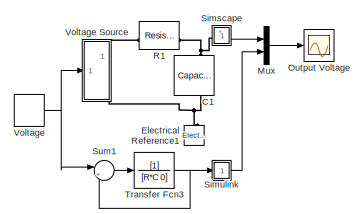
[diagram: root canvas - part 1/3, top right region]
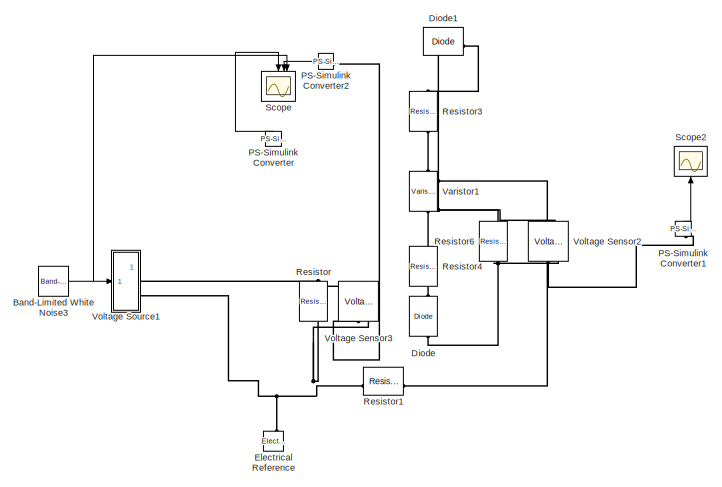
[diagram: root canvas - part 2/3, middle left region]
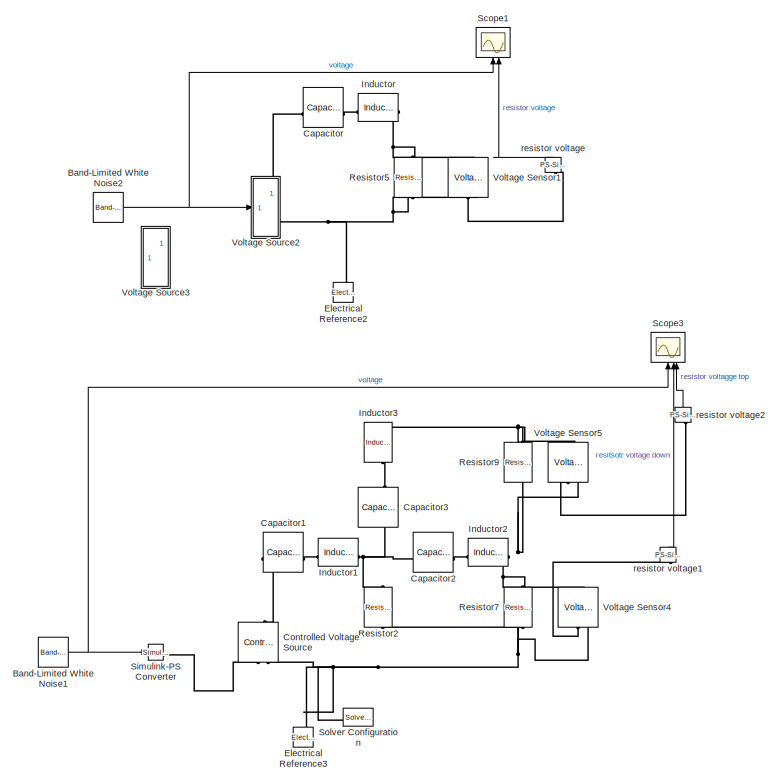
[diagram: root canvas - part 3/3, center side, full height]
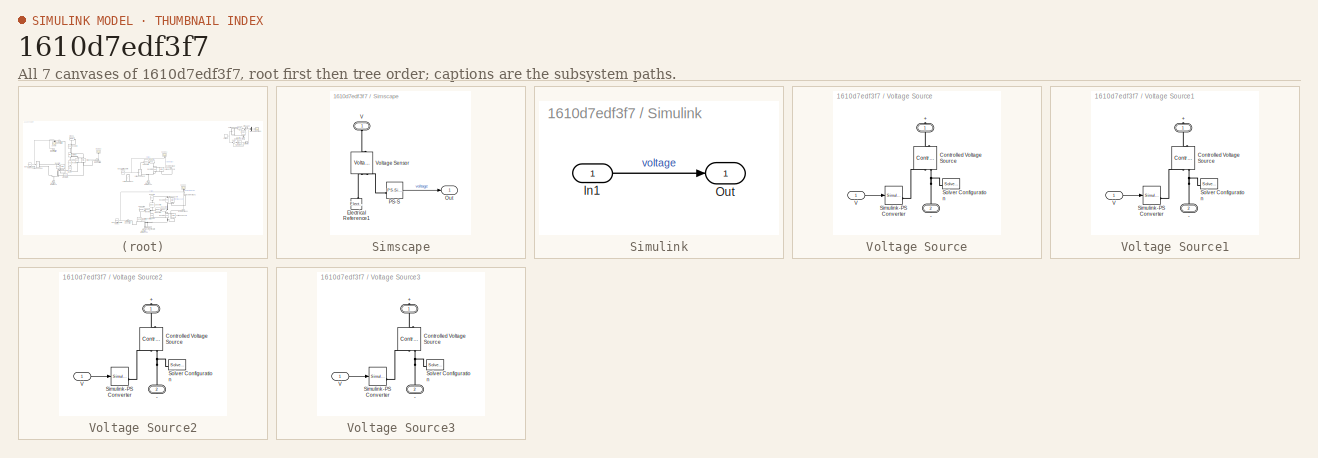
[diagram: thumbnail index - all 7 canvases of the model, root first then tree order]
MODEL slx_1610d7edf3f7
KIND model
CONFIG AbsTol = 1e-3
CONFIG EnableMultiTasking = off
CONFIG FixedStep = auto
CONFIG MaxStep = auto
CONFIG MinStep = auto
CONFIG RelTol = 1e-3
CONFIG SampleTimeConstraint = Unconstrained
CONFIG SolverName = VariableStepAuto
CONFIG StartTime = 0.0
CONFIG StopTime = 5
BLOCK [Reference] Band-Limited White Noise1  REF=simulink/Sources/Band-Limited
White Noise
  Commented = on
  SourceBlock = simulink/Sources/Band-Limited\nWhite Noise
  SourceType = Band-Limited White Noise.
BLOCK [Reference] Band-Limited White Noise2  REF=simulink/Sources/Band-Limited
White Noise
  Commented = on
  SourceBlock = simulink/Sources/Band-Limited\nWhite Noise
  SourceType = Band-Limited White Noise.
BLOCK [Reference] Band-Limited White Noise3  REF=simulink/Sources/Band-Limited
White Noise
  SourceBlock = simulink/Sources/Band-Limited\nWhite Noise
  SourceType = Band-Limited White Noise.
BLOCK [Reference] C1  REF=fl_lib/Electrical/Electrical Elements/Capacitor
  Commented = on
  NameLocation = left
  SourceBlock = fl_lib/Electrical/Electrical Elements/Capacitor
  SourceType = Capacitor
BLOCK [Reference] Capacitor  REF=fl_lib/Electrical/Electrical Elements/Capacitor
  Commented = on
  SourceBlock = fl_lib/Electrical/Electrical Elements/Capacitor
  SourceType = Capacitor
BLOCK [Reference] Capacitor1  REF=fl_lib/Electrical/Electrical Elements/Capacitor
  Commented = on
  SourceBlock = fl_lib/Electrical/Electrical Elements/Capacitor
  SourceType = Capacitor
BLOCK [Reference] Capacitor2  REF=fl_lib/Electrical/Electrical Elements/Capacitor
  Commented = on
  SourceBlock = fl_lib/Electrical/Electrical Elements/Capacitor
  SourceType = Capacitor
BLOCK [Reference] Capacitor3  REF=fl_lib/Electrical/Electrical Elements/Capacitor
  Commented = on
  NameLocation = right
  SourceBlock = fl_lib/Electrical/Electrical Elements/Capacitor
  SourceType = Capacitor
BLOCK [Reference] Controlled Voltage Source  REF=fl_lib/Electrical/Electrical Sources/Controlled Voltage
Source
  Commented = on
  NameLocation = right
  SourceBlock = fl_lib/Electrical/Electrical Sources/Controlled Voltage\nSource
  SourceType = Controlled Voltage\nSource
BLOCK [Reference] Diode  REF=ee_lib/Semiconductors &
Converters/Diode
  NameLocation = left
  SourceBlock = ee_lib/Semiconductors &\nConverters/Diode
  SourceType = Diode
BLOCK [Reference] Diode1  REF=ee_lib/Semiconductors &
Converters/Diode
  NameLocation = top
  SourceBlock = ee_lib/Semiconductors &\nConverters/Diode
  SourceType = Diode
BLOCK [Reference] Electrical Reference  REF=fl_lib/Electrical/Electrical Elements/Electrical Reference
  SourceBlock = fl_lib/Electrical/Electrical Elements/Electrical Reference
  SourceType = Electrical Reference
BLOCK [Reference] Electrical Reference1  REF=fl_lib/Electrical/Electrical Elements/Electrical Reference
  Commented = on
  NameLocation = right
  SourceBlock = fl_lib/Electrical/Electrical Elements/Electrical Reference
  SourceType = Electrical Reference
BLOCK [Reference] Electrical Reference2  REF=fl_lib/Electrical/Electrical Elements/Electrical Reference
  Commented = on
  SourceBlock = fl_lib/Electrical/Electrical Elements/Electrical Reference
  SourceType = Electrical Reference
BLOCK [Reference] Electrical Reference3  REF=fl_lib/Electrical/Electrical Elements/Electrical Reference
  Commented = on
  SourceBlock = fl_lib/Electrical/Electrical Elements/Electrical Reference
  SourceType = Electrical Reference
BLOCK [Reference] Inductor  REF=fl_lib/Electrical/Electrical Elements/Inductor
  Commented = on
  SourceBlock = fl_lib/Electrical/Electrical Elements/Inductor
  SourceType = Inductor
BLOCK [Reference] Inductor1  REF=fl_lib/Electrical/Electrical Elements/Inductor
  Commented = on
  SourceBlock = fl_lib/Electrical/Electrical Elements/Inductor
  SourceType = Inductor
BLOCK [Reference] Inductor2  REF=fl_lib/Electrical/Electrical Elements/Inductor
  Commented = on
  SourceBlock = fl_lib/Electrical/Electrical Elements/Inductor
  SourceType = Inductor
BLOCK [Reference] Inductor3  REF=fl_lib/Electrical/Electrical Elements/Inductor
  Commented = on
  NameLocation = right
  SourceBlock = fl_lib/Electrical/Electrical Elements/Inductor
  SourceType = Inductor
BLOCK [Mux] Mux
  Commented = on
  DisplayOption = bar
  Inputs = 2
BLOCK [Scope] Output Voltage
  Commented = on
  Floating = off
  NumInputPorts = 1
  ScopeSpecificationString = Simulink.scopes.TimeScopeBlockCfg('CurrentConfiguration', extmgr.ConfigurationSet(extmgr.Configuration('Core','General UI',true,'FigureColor',[0.501960784313725 0.501960784313725 0.501960784313725]),extmgr.Configuration('Core','Source UI',true),extmgr.Configuration('Sources','WiredSimulink',true,'DataLoggingVariableName','ScopeData1','DataLoggingSaveFormat','Array','DataLoggingLimitDataPoints',tru...<+2646ch>
  Tag = PublishScope
BLOCK [Reference] PS-Simulink Converter  REF=nesl_utility/PS-Simulink
Converter
  NameLocation = right
  SourceBlock = nesl_utility/PS-Simulink\nConverter
  SourceType = PS-Simulink\nConverter
BLOCK [Reference] PS-Simulink Converter1  REF=nesl_utility/PS-Simulink
Converter
  NameLocation = right
  SourceBlock = nesl_utility/PS-Simulink\nConverter
  SourceType = PS-Simulink\nConverter
BLOCK [Reference] PS-Simulink Converter2  REF=nesl_utility/PS-Simulink
Converter
  NameLocation = top
  SourceBlock = nesl_utility/PS-Simulink\nConverter
  SourceType = PS-Simulink\nConverter
BLOCK [Reference] R1  REF=fl_lib/Electrical/Electrical Elements/Resistor
  Commented = on
  SourceBlock = fl_lib/Electrical/Electrical Elements/Resistor
  SourceType = Resistor
BLOCK [Reference] Resistor  REF=fl_lib/Electrical/Electrical Elements/Resistor
  NameLocation = left
  SourceBlock = fl_lib/Electrical/Electrical Elements/Resistor
  SourceType = Resistor
BLOCK [Reference] Resistor1  REF=fl_lib/Electrical/Electrical Elements/Resistor
  NameLocation = top
  SourceBlock = fl_lib/Electrical/Electrical Elements/Resistor
  SourceType = Resistor
BLOCK [Reference] Resistor2  REF=fl_lib/Electrical/Electrical Elements/Resistor
  Commented = on
  NameLocation = left
  SourceBlock = fl_lib/Electrical/Electrical Elements/Resistor
  SourceType = Resistor
BLOCK [Reference] Resistor3  REF=fl_lib/Electrical/Electrical Elements/Resistor
  NameLocation = right
  SourceBlock = fl_lib/Electrical/Electrical Elements/Resistor
  SourceType = Resistor
BLOCK [Reference] Resistor4  REF=fl_lib/Electrical/Electrical Elements/Resistor
  NameLocation = right
  SourceBlock = fl_lib/Electrical/Electrical Elements/Resistor
  SourceType = Resistor
BLOCK [Reference] Resistor5  REF=fl_lib/Electrical/Electrical Elements/Resistor
  Commented = on
  NameLocation = left
  SourceBlock = fl_lib/Electrical/Electrical Elements/Resistor
  SourceType = Resistor
BLOCK [Reference] Resistor6  REF=fl_lib/Electrical/Electrical Elements/Resistor
  NameLocation = left
  SourceBlock = fl_lib/Electrical/Electrical Elements/Resistor
  SourceType = Resistor
BLOCK [Reference] Resistor7  REF=fl_lib/Electrical/Electrical Elements/Resistor
  Commented = on
  NameLocation = left
  SourceBlock = fl_lib/Electrical/Electrical Elements/Resistor
  SourceType = Resistor
BLOCK [Reference] Resistor9  REF=fl_lib/Electrical/Electrical Elements/Resistor
  Commented = on
  NameLocation = left
  SourceBlock = fl_lib/Electrical/Electrical Elements/Resistor
  SourceType = Resistor
BLOCK [Scope] Scope
  Floating = off
  NameLocation = left
  NumInputPorts = 3
  ScopeSpecificationString = Simulink.scopes.TimeScopeBlockCfg('CurrentConfiguration', extmgr.ConfigurationSet(extmgr.Configuration('Core','General UI',true),extmgr.Configuration('Core','Source UI',true),extmgr.Configuration('Sources','WiredSimulink',true),extmgr.Configuration('Visuals','Time Domain',true,'SerializedDisplays',{struct('MinYLimReal','-553.80144','MaxYLimReal','499.74368','YLabelReal','','MinYLimMag',' 0.00000',...<+1528ch>
BLOCK [Scope] Scope1
  Commented = on
  Floating = off
  NameLocation = right
  NumInputPorts = 3
  ScopeSpecificationString = Simulink.scopes.TimeScopeBlockCfg('CurrentConfiguration', extmgr.ConfigurationSet(extmgr.Configuration('Core','General UI',true),extmgr.Configuration('Core','Source UI',true),extmgr.Configuration('Sources','WiredSimulink',true,'DataLoggingVariableName','ScopeData2'),extmgr.Configuration('Visuals','Time Domain',true,'SerializedDisplays',{struct('MinYLimReal','-559.47339','MaxYLimReal','550.79127','...<+1529ch>
BLOCK [Scope] Scope2
  Floating = off
  NameLocation = right
  NumInputPorts = 2
  ScopeSpecificationString = Simulink.scopes.TimeScopeBlockCfg('CurrentConfiguration', extmgr.ConfigurationSet(extmgr.Configuration('Core','General UI',true),extmgr.Configuration('Core','Source UI',true),extmgr.Configuration('Sources','WiredSimulink',true,'DataLoggingVariableName','ScopeData3'),extmgr.Configuration('Visuals','Time Domain',true,'SerializedDisplays',{struct('MinYLimReal','-0.0000000067','MaxYLimReal','0.0000000...<+1550ch>
BLOCK [Scope] Scope3
  Commented = on
  Floating = off
  NameLocation = right
  NumInputPorts = 3
  ScopeSpecificationString = Simulink.scopes.TimeScopeBlockCfg('CurrentConfiguration', extmgr.ConfigurationSet(extmgr.Configuration('Core','General UI',true),extmgr.Configuration('Core','Source UI',true),extmgr.Configuration('Sources','WiredSimulink',true,'DataLoggingVariableName','ScopeData1'),extmgr.Configuration('Visuals','Time Domain',true,'SerializedDisplays',{struct('MinYLimReal','-553.80144','MaxYLimReal','499.74368','...<+1547ch>
BLOCK [SubSystem] Simscape
  Commented = on
BLOCK [Reference] Simscape/Electrical Reference1  REF=fl_lib/Electrical/Electrical Elements/Electrical Reference
  NameLocation = right
  SourceBlock = fl_lib/Electrical/Electrical Elements/Electrical Reference
  SourceType = Electrical Reference
BLOCK [Outport] Simscape/Out
  VectorParamsAs1DForOutWhenUnconnected = off
BLOCK [Reference] Simscape/PS-S  REF=nesl_utility/PS-Simulink
Converter
  SourceBlock = nesl_utility/PS-Simulink\nConverter
  SourceType = PS-Simulink\nConverter
BLOCK [PMIOPort] Simscape/V
  NameLocation = right
  Side = Left
BLOCK [Reference] Simscape/Voltage Sensor  REF=fl_lib/Electrical/Electrical Sensors/Voltage Sensor
  NameLocation = right
  SourceBlock = fl_lib/Electrical/Electrical Sensors/Voltage Sensor
  SourceType = Voltage Sensor
BLOCK [SubSystem] Simulink
  Commented = on
BLOCK [Reference] Simulink-PS Converter  REF=nesl_utility/Simulink-PS
Converter
  Commented = on
  SourceBlock = nesl_utility/Simulink-PS\nConverter
  SourceType = Simulink-PS\nConverter
BLOCK [Inport] Simulink/In1
BLOCK [Outport] Simulink/Out
  VectorParamsAs1DForOutWhenUnconnected = off
BLOCK [Reference] Solver Configuration  REF=nesl_utility/Solver
Configuration
  Commented = on
  SourceBlock = nesl_utility/Solver\nConfiguration
  SourceType = Solver\nConfiguration
BLOCK [Sum] Sum1
  Commented = on
  Inputs = |+-
BLOCK [TransferFcn] Transfer Fcn3
  Commented = on
  Denominator = [R*C 0]
  InitFcn = wp=1/(R*C);
BLOCK [Reference] Varistor1  REF=ee_lib/Passive/Varistor
  NameLocation = left
  SourceBlock = ee_lib/Passive/Varistor
  SourceType = Varistor
BLOCK [DiscretePulseGenerator] Voltage
  Amplitude = 5
  Commented = on
  Period = 1e-2
  PhaseDelay = 1e-3
  PulseType = Time based
  PulseWidth = 50
BLOCK [Reference] Voltage Sensor1  REF=fl_lib/Electrical/Electrical Sensors/Voltage Sensor
  Commented = on
  LibrarySourceBlock = ee_lib/Sensors &\nTransducers/Voltage Sensor
  NameLocation = right
  SourceBlock = fl_lib/Electrical/Electrical Sensors/Voltage Sensor
  SourceType = Voltage Sensor
BLOCK [Reference] Voltage Sensor2  REF=fl_lib/Electrical/Electrical Sensors/Voltage Sensor
  LibrarySourceBlock = ee_lib/Sensors &\nTransducers/Voltage Sensor
  NameLocation = right
  SourceBlock = fl_lib/Electrical/Electrical Sensors/Voltage Sensor
  SourceType = Voltage Sensor
BLOCK [Reference] Voltage Sensor3  REF=fl_lib/Electrical/Electrical Sensors/Voltage Sensor
  LibrarySourceBlock = ee_lib/Sensors &\nTransducers/Voltage Sensor
  NameLocation = right
  SourceBlock = fl_lib/Electrical/Electrical Sensors/Voltage Sensor
  SourceType = Voltage Sensor
BLOCK [Reference] Voltage Sensor4  REF=fl_lib/Electrical/Electrical Sensors/Voltage Sensor
  Commented = on
  LibrarySourceBlock = ee_lib/Sensors &\nTransducers/Voltage Sensor
  NameLocation = right
  SourceBlock = fl_lib/Electrical/Electrical Sensors/Voltage Sensor
  SourceType = Voltage Sensor
BLOCK [Reference] Voltage Sensor5  REF=fl_lib/Electrical/Electrical Sensors/Voltage Sensor
  Commented = on
  LibrarySourceBlock = ee_lib/Sensors &\nTransducers/Voltage Sensor
  NameLocation = right
  SourceBlock = fl_lib/Electrical/Electrical Sensors/Voltage Sensor
  SourceType = Voltage Sensor
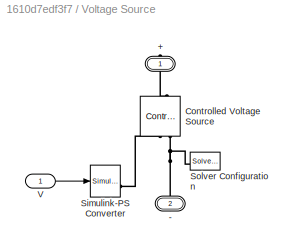
BLOCK [SubSystem] Voltage Source
  Commented = on
BLOCK [PMIOPort] Voltage Source/+
  NameLocation = right
  Side = Right
BLOCK [PMIOPort] Voltage Source/-
  NameLocation = right
  Port = 2
  Side = Right
BLOCK [Reference] Voltage Source/Controlled Voltage Source  REF=fl_lib/Electrical/Electrical Sources/Controlled Voltage
Source
  NameLocation = right
  SourceBlock = fl_lib/Electrical/Electrical Sources/Controlled Voltage\nSource
  SourceType = Controlled Voltage\nSource
BLOCK [Reference] Voltage Source/Simulink-PS Converter  REF=nesl_utility/Simulink-PS
Converter
  SourceBlock = nesl_utility/Simulink-PS\nConverter
  SourceType = Simulink-PS\nConverter
BLOCK [Reference] Voltage Source/Solver Configuration  REF=nesl_utility/Solver
Configuration
  SourceBlock = nesl_utility/Solver\nConfiguration
  SourceType = Solver\nConfiguration
BLOCK [Inport] Voltage Source/V
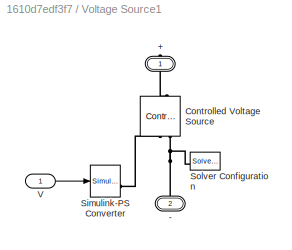
BLOCK [SubSystem] Voltage Source1
BLOCK [PMIOPort] Voltage Source1/+
  NameLocation = right
  Side = Right
BLOCK [PMIOPort] Voltage Source1/-
  NameLocation = right
  Port = 2
  Side = Right
BLOCK [Reference] Voltage Source1/Controlled Voltage Source  REF=fl_lib/Electrical/Electrical Sources/Controlled Voltage
Source
  NameLocation = right
  SourceBlock = fl_lib/Electrical/Electrical Sources/Controlled Voltage\nSource
  SourceType = Controlled Voltage\nSource
BLOCK [Reference] Voltage Source1/Simulink-PS Converter  REF=nesl_utility/Simulink-PS
Converter
  SourceBlock = nesl_utility/Simulink-PS\nConverter
  SourceType = Simulink-PS\nConverter
BLOCK [Reference] Voltage Source1/Solver Configuration  REF=nesl_utility/Solver
Configuration
  SourceBlock = nesl_utility/Solver\nConfiguration
  SourceType = Solver\nConfiguration
BLOCK [Inport] Voltage Source1/V
BLOCK [SubSystem] Voltage Source2
  Commented = on
BLOCK [PMIOPort] Voltage Source2/+
  NameLocation = right
  Side = Right
BLOCK [PMIOPort] Voltage Source2/-
  NameLocation = right
  Port = 2
  Side = Right
BLOCK [Reference] Voltage Source2/Controlled Voltage Source  REF=fl_lib/Electrical/Electrical Sources/Controlled Voltage
Source
  NameLocation = right
  SourceBlock = fl_lib/Electrical/Electrical Sources/Controlled Voltage\nSource
  SourceType = Controlled Voltage\nSource
BLOCK [Reference] Voltage Source2/Simulink-PS Converter  REF=nesl_utility/Simulink-PS
Converter
  SourceBlock = nesl_utility/Simulink-PS\nConverter
  SourceType = Simulink-PS\nConverter
BLOCK [Reference] Voltage Source2/Solver Configuration  REF=nesl_utility/Solver
Configuration
  SourceBlock = nesl_utility/Solver\nConfiguration
  SourceType = Solver\nConfiguration
BLOCK [Inport] Voltage Source2/V
BLOCK [SubSystem] Voltage Source3
  Commented = on
BLOCK [PMIOPort] Voltage Source3/+
  NameLocation = right
  Side = Right
BLOCK [PMIOPort] Voltage Source3/-
  NameLocation = right
  Port = 2
  Side = Right
BLOCK [Reference] Voltage Source3/Controlled Voltage Source  REF=fl_lib/Electrical/Electrical Sources/Controlled Voltage
Source
  NameLocation = right
  SourceBlock = fl_lib/Electrical/Electrical Sources/Controlled Voltage\nSource
  SourceType = Controlled Voltage\nSource
BLOCK [Reference] Voltage Source3/Simulink-PS Converter  REF=nesl_utility/Simulink-PS
Converter
  SourceBlock = nesl_utility/Simulink-PS\nConverter
  SourceType = Simulink-PS\nConverter
BLOCK [Reference] Voltage Source3/Solver Configuration  REF=nesl_utility/Solver
Configuration
  SourceBlock = nesl_utility/Solver\nConfiguration
  SourceType = Solver\nConfiguration
BLOCK [Inport] Voltage Source3/V
BLOCK [Reference] resistor voltage  REF=nesl_utility/PS-Simulink
Converter
  Commented = on
  NameLocation = right
  SourceBlock = nesl_utility/PS-Simulink\nConverter
  SourceType = PS-Simulink\nConverter
BLOCK [Reference] resistor voltage1  REF=nesl_utility/PS-Simulink
Converter
  Commented = on
  NameLocation = right
  SourceBlock = nesl_utility/PS-Simulink\nConverter
  SourceType = PS-Simulink\nConverter
BLOCK [Reference] resistor voltage2  REF=nesl_utility/PS-Simulink
Converter
  Commented = on
  NameLocation = right
  SourceBlock = nesl_utility/PS-Simulink\nConverter
  SourceType = PS-Simulink\nConverter
NET Band-Limited White Noise1:1 -> Scope3:1, Simulink-PS Converter:1
NET Band-Limited White Noise2:1 -> Scope1:1, Voltage Source2:1
NET Band-Limited White Noise3:1 -> Scope:3, Voltage Source1:1
LINE Mux:1 -> Output Voltage:1
LINE PS-Simulink Converter1:1 -> Scope2:1
LINE PS-Simulink Converter2:1 -> Scope:2
LINE PS-Simulink Converter:1 -> Scope:1
LINE Simscape/PS-S:1 -> Simscape/Out:1
LINE Simscape:1 -> Mux:1
LINE Simulink/In1:1 -> Simulink/Out:1
LINE Simulink:1 -> Mux:2
LINE Sum1:1 -> Transfer Fcn3:1
NET Transfer Fcn3:1 -> Simulink:1, Sum1:2
LINE Voltage Source/V:1 -> Voltage Source/Simulink-PS Converter:1
LINE Voltage Source1/V:1 -> Voltage Source1/Simulink-PS Converter:1
LINE Voltage Source2/V:1 -> Voltage Source2/Simulink-PS Converter:1
LINE Voltage Source3/V:1 -> Voltage Source3/Simulink-PS Converter:1
NET Voltage:1 -> Sum1:1, Voltage Source:1
LINE resistor voltage1:1 -> Scope3:2
LINE resistor voltage2:1 -> Scope3:3
LINE resistor voltage:1 -> Scope1:2
PNET net1: C1:LConn1 -- R1:RConn1 -- Simscape:LConn1
PNET net2: C1:RConn1 -- Electrical Reference1:LConn1 -- Voltage Source:RConn2
PLINE Capacitor1:LConn1 -- Controlled Voltage Source:LConn1
PLINE Capacitor1:RConn1 -- Inductor1:LConn1
PNET net3: Capacitor2:LConn1 -- Capacitor3:LConn1 -- Inductor1:RConn1 -- Resistor2:LConn1
PLINE Capacitor2:RConn1 -- Inductor2:LConn1
PLINE Capacitor3:RConn1 -- Inductor3:LConn1
PLINE Capacitor:LConn1 -- Voltage Source2:RConn1
PLINE Capacitor:RConn1 -- Inductor:LConn1
PLINE Controlled Voltage Source:RConn1 -- Simulink-PS Converter:RConn1
PNET net4: Controlled Voltage Source:RConn2 -- Electrical Reference3:LConn1 -- Resistor2:RConn1 -- Resistor7:RConn1 -- Solver Configuration:RConn1 -- Voltage Sensor4:RConn2
PNET net5: Diode1:LConn1 -- Resistor1:LConn1 -- Resistor6:LConn1 -- Voltage Sensor2:LConn1
PLINE Diode1:RConn1 -- Resistor3:RConn1
PLINE Diode:LConn1 -- Varistor1:RConn1
PNET net6: Diode:RConn1 -- Resistor6:RConn1 -- Voltage Sensor2:RConn2
PNET net7: Electrical Reference2:LConn1 -- Resistor5:RConn1 -- Voltage Sensor1:RConn2 -- Voltage Source2:RConn2
PNET net8: Electrical Reference:LConn1 -- Resistor1:RConn1 -- Resistor:RConn1 -- Voltage Sensor3:RConn2 -- Voltage Source1:RConn2
PNET net9: Inductor2:RConn1 -- Resistor7:LConn1 -- Resistor9:RConn1 -- Voltage Sensor4:LConn1 -- Voltage Sensor5:RConn2
PNET net10: Inductor3:RConn1 -- Resistor9:LConn1 -- Voltage Sensor5:LConn1
PNET net11: Inductor:RConn1 -- Resistor5:LConn1 -- Voltage Sensor1:LConn1
PLINE PS-Simulink Converter1:LConn1 -- Voltage Sensor2:RConn1
PLINE PS-Simulink Converter2:LConn1 -- Voltage Sensor3:RConn1
PLINE R1:LConn1 -- Voltage Source:RConn1
PLINE Resistor3:LConn1 -- Varistor1:LConn1
PNET net12: Resistor:LConn1 -- Voltage Sensor3:LConn1 -- Voltage Source1:RConn1
PLINE Simscape/Electrical Reference1:LConn1 -- Simscape/Voltage Sensor:RConn2
PLINE Simscape/PS-S:LConn1 -- Simscape/Voltage Sensor:RConn1
PLINE Simscape/V:RConn1 -- Simscape/Voltage Sensor:LConn1
PLINE Voltage Sensor1:RConn1 -- resistor voltage:LConn1
PLINE Voltage Sensor4:RConn1 -- resistor voltage1:LConn1
PLINE Voltage Sensor5:RConn1 -- resistor voltage2:LConn1
PLINE Voltage Source/+:RConn1 -- Voltage Source/Controlled Voltage Source:LConn1
PNET net13: Voltage Source/-:RConn1 -- Voltage Source/Controlled Voltage Source:RConn2 -- Voltage Source/Solver Configuration:RConn1
PLINE Voltage Source/Controlled Voltage Source:RConn1 -- Voltage Source/Simulink-PS Converter:RConn1
PLINE Voltage Source1/+:RConn1 -- Voltage Source1/Controlled Voltage Source:LConn1
PNET net14: Voltage Source1/-:RConn1 -- Voltage Source1/Controlled Voltage Source:RConn2 -- Voltage Source1/Solver Configuration:RConn1
PLINE Voltage Source1/Controlled Voltage Source:RConn1 -- Voltage Source1/Simulink-PS Converter:RConn1
PLINE Voltage Source2/+:RConn1 -- Voltage Source2/Controlled Voltage Source:LConn1
PNET net15: Voltage Source2/-:RConn1 -- Voltage Source2/Controlled Voltage Source:RConn2 -- Voltage Source2/Solver Configuration:RConn1
PLINE Voltage Source2/Controlled Voltage Source:RConn1 -- Voltage Source2/Simulink-PS Converter:RConn1
PLINE Voltage Source3/+:RConn1 -- Voltage Source3/Controlled Voltage Source:LConn1
PNET net16: Voltage Source3/-:RConn1 -- Voltage Source3/Controlled Voltage Source:RConn2 -- Voltage Source3/Solver Configuration:RConn1
PLINE Voltage Source3/Controlled Voltage Source:RConn1 -- Voltage Source3/Simulink-PS Converter:RConn1
note: NET lines group one-source signal fan-out (src -> all destinations, sorted); 1:1 wires keep LINE; PNET lines group multi-terminal physical nets as a canonical sorted terminal list (undirected conserving connections); 2-terminal nets keep the pairwise PLINE form
